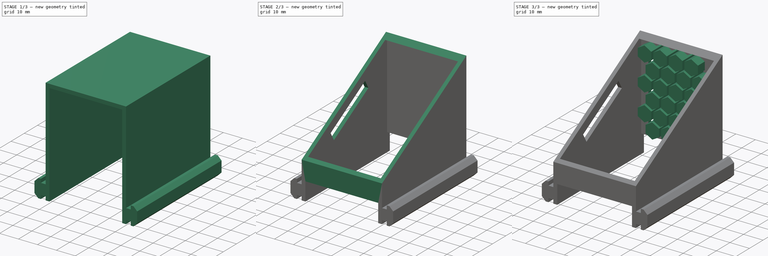
[diagram: build sequence overview — one tinted view per stage of 3, left to right]
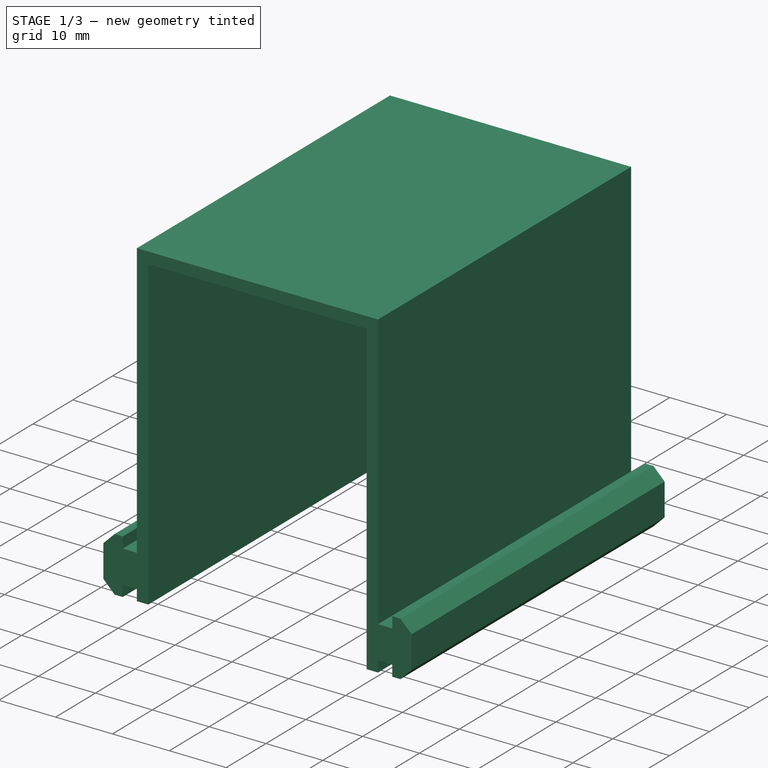
[diagram: stage 1 of 3 — iso view after this stage's code; geometry added in this stage tinted green]
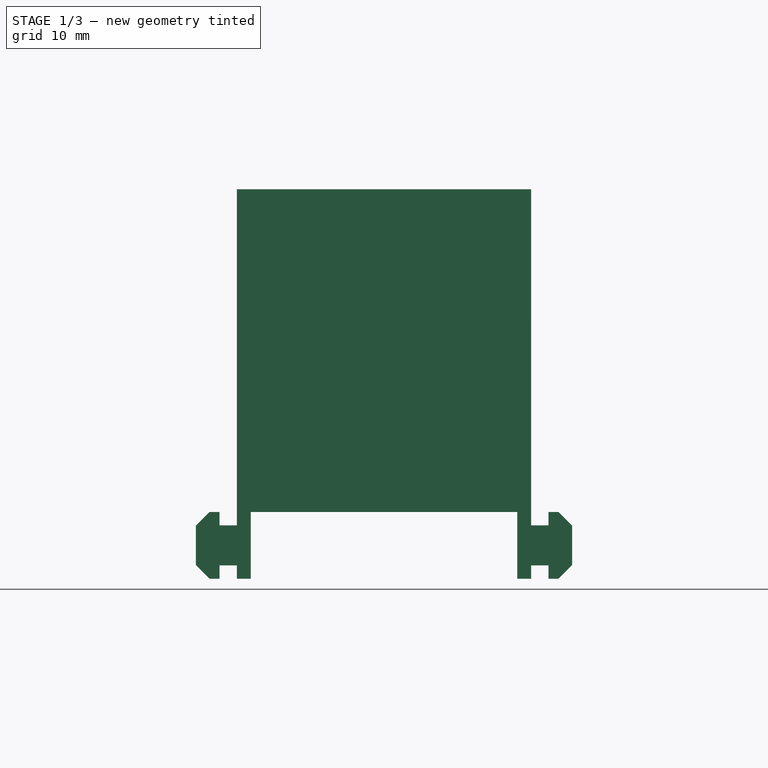
[diagram: stage 1 of 3 — front view after this stage's code; geometry added in this stage tinted green]
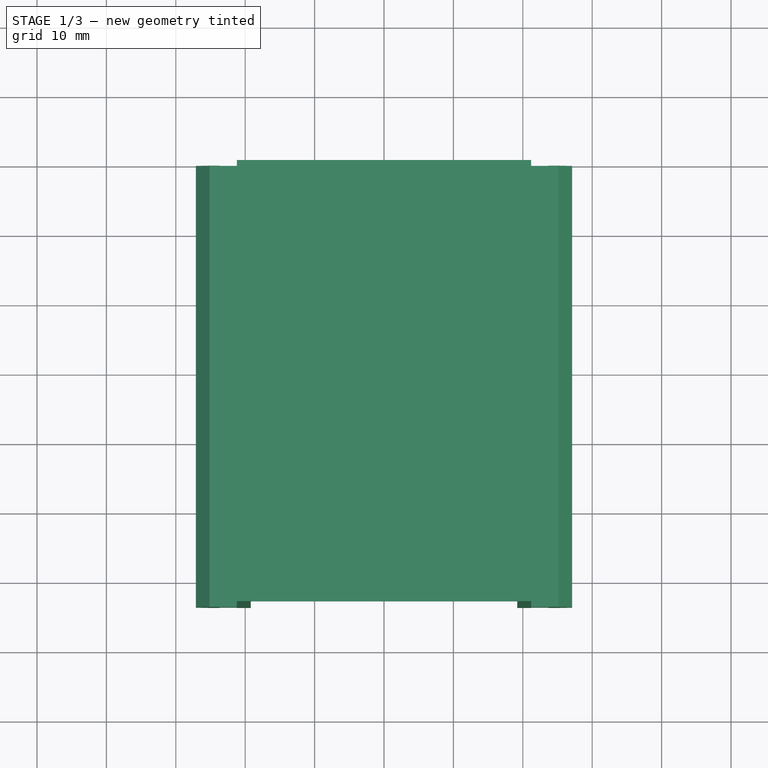
[diagram: stage 1 of 3 — top view after this stage's code; geometry added in this stage tinted green]
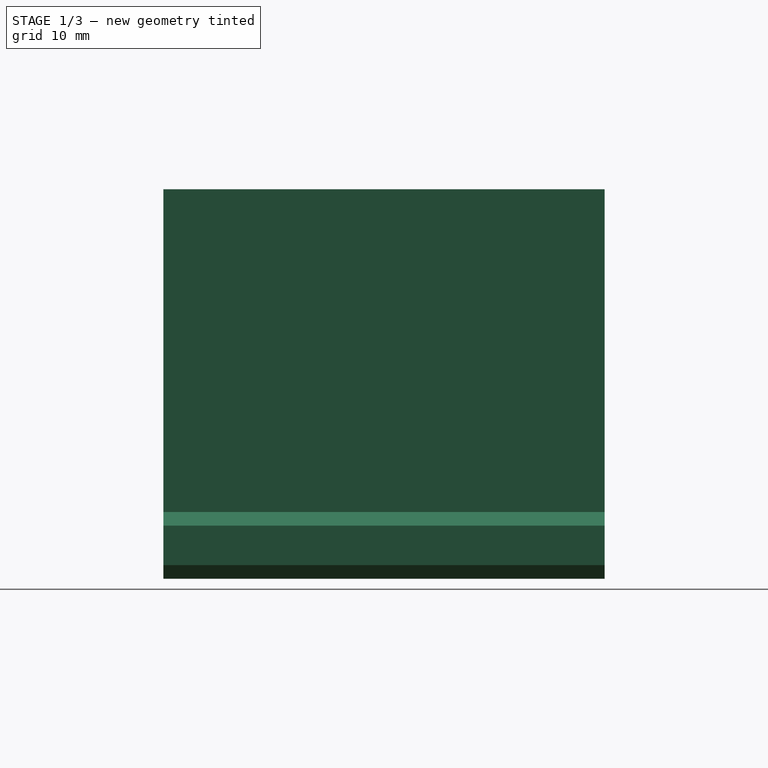
[diagram: stage 1 of 3 — right view after this stage's code; geometry added in this stage tinted green]
FCSTD DOCUMENT  (FreeCAD 1.0R39109 (Git))
Label: 06 Screen Mount Rail  v2 
License: All rights reserved
LicenseURL: https://en.wikipedia.org/wiki/All_rights_reserved
objects: Sketcher::SketchObject×7, PartDesign::Pad×3, PartDesign::Pocket×3, Part::FeaturePython×1, Part::Extrusion×1, PartDesign::Body×1
note: 34 computed .brp shape members not serialized (recipe doc carries the construction recipe); baked Part::Feature solids carry a one-line shape summary decoded from their .brp

FEATURE [Sketcher::SketchObject] Sketch
  ArcFitTolerance = 1e-06
  AttachmentSupport = -> [XZ_Plane]
  FullyConstrained = true
  MakeInternals = false
  MapMode = 5
  Placement = pos=(0,0,0) rot=(1,0,0;1.5708rad)
  sketch-geometry (40):
    g0: LineSegment StartX=-21.2042 StartY=0 StartZ=0 EndX=-21.2042 EndY=1.93 EndZ=0
    g1: LineSegment StartX=-21.2042 StartY=1.93 StartZ=0 EndX=-23.7042 EndY=1.93 EndZ=0
    g2: LineSegment StartX=-23.7042 StartY=1.93 StartZ=0 EndX=-23.7042 EndY=0 EndZ=0
    g3: LineSegment StartX=-23.7042 StartY=0 StartZ=0 EndX=-25.1342 EndY=0 EndZ=0
    g4: LineSegment StartX=-25.1342 StartY=0 StartZ=0 EndX=-27.1 EndY=1.96576 EndZ=0
    g5: LineSegment StartX=-27.1 StartY=1.96576 StartZ=0 EndX=-27.1 EndY=7.65576 EndZ=0
    g6: LineSegment StartX=-27.1 StartY=7.65576 StartZ=0 EndX=-25.1342 EndY=9.62151 EndZ=0
    g7: LineSegment StartX=-25.1342 StartY=9.62151 StartZ=0 EndX=-23.7042 EndY=9.62151 EndZ=0
    g8: LineSegment StartX=-23.7042 StartY=9.62151 StartZ=0 EndX=-23.7042 EndY=7.69151 EndZ=0
    g9: LineSegment StartX=-23.7042 StartY=7.69151 StartZ=0 EndX=-21.2042 EndY=7.69151 EndZ=0
    g10: LineSegment StartX=-21.2042 StartY=7.69151 StartZ=0 EndX=-21.2042 EndY=9.62 EndZ=0
    g11: LineSegment StartX=-21.2042 StartY=9.62 StartZ=0 EndX=-19.2042 EndY=9.62 EndZ=0
    g12: LineSegment StartX=-19.2042 StartY=9.62 StartZ=0 EndX=-19.2042 EndY=0 EndZ=0
    g13: LineSegment StartX=-19.2042 StartY=0 StartZ=0 EndX=-21.2042 EndY=0 EndZ=0
    g14: LineSegment StartX=19.2042 StartY=9.62 StartZ=0 EndX=19.2042 EndY=0 EndZ=0
    g15: LineSegment StartX=19.2042 StartY=0 StartZ=0 EndX=21.2042 EndY=0 EndZ=0
    g16: LineSegment StartX=21.2042 StartY=0 StartZ=0 EndX=21.2042 EndY=1.93 EndZ=0
    g17: LineSegment StartX=21.2042 StartY=1.93 StartZ=0 EndX=23.7042 EndY=1.93 EndZ=0
    g18: LineSegment StartX=23.7042 StartY=1.93 StartZ=0 EndX=23.7042 EndY=0 EndZ=0
    g19: LineSegment StartX=23.7042 StartY=0 StartZ=0 EndX=25.1342 EndY=0 EndZ=0
    g20: LineSegment StartX=25.1342 StartY=0 StartZ=0 EndX=27.1 EndY=1.96576 EndZ=0
    g21: LineSegment StartX=27.1 StartY=1.96576 StartZ=0 EndX=27.1 EndY=7.65576 EndZ=0
    g22: LineSegment StartX=27.1 StartY=7.65576 StartZ=0 EndX=25.1342 EndY=9.62151 EndZ=0
    g23: LineSegment StartX=25.1342 StartY=9.62151 StartZ=0 EndX=23.7042 EndY=9.62151 EndZ=0
    g24: LineSegment StartX=23.7042 StartY=9.62151 StartZ=0 EndX=23.7042 EndY=7.69151 EndZ=0
    g25: LineSegment StartX=23.7042 StartY=7.69151 StartZ=0 EndX=21.2042 EndY=7.69151 EndZ=0
    g26: LineSegment StartX=21.2042 StartY=7.69151 StartZ=0 EndX=21.2042 EndY=9.62 EndZ=0
    g27: LineSegment StartX=21.2042 StartY=9.62 StartZ=0 EndX=19.2042 EndY=9.62 EndZ=0
    g28: LineSegment StartX=19.2042 StartY=56.12 StartZ=0 EndX=19.2042 EndY=9.62 EndZ=0
    g29: LineSegment StartX=19.2042 StartY=9.62 StartZ=0 EndX=21.2042 EndY=9.62 EndZ=0
    g30: LineSegment StartX=21.2042 StartY=9.62 StartZ=0 EndX=21.2042 EndY=56.12 EndZ=0
    g31: LineSegment StartX=21.2042 StartY=56.12 StartZ=0 EndX=19.2042 EndY=56.12 EndZ=0
    g32: LineSegment StartX=-21.2042 StartY=9.62 StartZ=0 EndX=-19.2042 EndY=9.62 EndZ=0
    g33: LineSegment StartX=-19.2042 StartY=9.62 StartZ=0 EndX=-19.2042 EndY=56.12 EndZ=0
    g34: LineSegment StartX=-19.2042 StartY=56.12 StartZ=0 EndX=-21.2042 EndY=56.12 EndZ=0
    g35: LineSegment StartX=-21.2042 StartY=56.12 StartZ=0 EndX=-21.2042 EndY=9.62 EndZ=0
    g36: LineSegment StartX=-19.2042 StartY=56.12 StartZ=0 EndX=19.2042 EndY=56.12 EndZ=0
    g37: LineSegment StartX=19.2042 StartY=56.12 StartZ=0 EndX=19.2042 EndY=54.12 EndZ=0
    g38: LineSegment StartX=19.2042 StartY=54.12 StartZ=0 EndX=-19.2042 EndY=54.12 EndZ=0
    g39: LineSegment StartX=-19.2042 StartY=54.12 StartZ=0 EndX=-19.2042 EndY=56.12 EndZ=0
  constraints (117):
    c: PointOnObject(g0,g-1)
    c: Vertical(g0)
    c: Coincident(g0,g1)
    c: Coincident(g1,g2)
    c: Vertical(g2)
    c: Coincident(g2,g3)
    c: PointOnObject(g3,g-1)
    c: Coincident(g3,g4)
    c: Coincident(g4,g5)
    c: Vertical(g5)
    c: Coincident(g5,g6)
    c: Coincident(g6,g7)
    c: Horizontal(g7)
    c: Coincident(g7,g8)
    c: Vertical(g8)
    c: Coincident(g8,g9)
    c: Horizontal(g9)
    c: Coincident(g9,g10)
    c: Horizontal(g11)
    c: Coincident(g11,g12)
    c: Coincident(g12,g13)
    c: Coincident(g13,g0)
    c: Horizontal(g13)
    c: Vertical(g12)
    c: Vertical(g10)
    c: Horizontal(g1)
    c: Horizontal(g3)
    c: Distance(g13) = 2
    c: Distance(g11) = 2
    c: Distance(g0) = 1.93
    c: Distance(g1) = 2.5
    c: Distance(g9) = 2.5
    c: Distance(g3) = 1.43
    c: Distance(g7) = 1.43
    c: Distance(g4) = 2.78
    c: Distance(g6) = 2.78
    c: Distance(g5) = 5.69
    c: Angle(g-1,g6) = 0.785398
    c: DistanceX(g4,g-1) = 27.1
    c: PointOnObject(g14,g-1)
    c: Vertical(g14)
    c: Coincident(g14,g15)
    c: PointOnObject(g15,g-1)
    c: Coincident(g15,g16)
    c: Coincident(g16,g17)
    c: Horizontal(g17)
    c: Coincident(g17,g18)
    c: PointOnObject(g18,g-1)
    c: Vertical(g18)
    c: Coincident(g18,g19)
    c: PointOnObject(g19,g-1)
    c: Coincident(g19,g20)
    c: Coincident(g20,g21)
    c: Vertical(g21)
    c: Coincident(g21,g22)
    c: Coincident(g22,g23)
    c: Coincident(g23,g24)
    c: Coincident(g24,g25)
    c: Coincident(g25,g26)
    c: Coincident(g26,g27)
    c: Coincident(g27,g14)
    c: Horizontal(g25)
    c: Horizontal(g27)
    c: Horizontal(g23)
    c: Vertical(g16)
    c: Vertical(g26)
    c: Vertical(g24)
    c: Angle(g20,g-1) = 2.35619
    c: Angle(g22,g-1) = 0.785398
    c: Distance(g15) = 2
    c: Distance(g27) = 2
    c: Distance(g25) = 2.5
    c: Distance(g17) = 2.5
    c: Distance(g24) = 1.93
    c: Distance(g18) = 1.93
    c: Distance(g22) = 2.78
    c: Distance(g20) = 2.78
    c: Distance(g19) = 1.43
    c: Distance(g21) = 5.69
    c: Distance(g14) = 9.62
    c: DistanceX(g-1,g20) = 27.1
    c: Coincident(g28,g29)
    c: Coincident(g29,g30)
    c: Coincident(g30,g31)
    c: Coincident(g31,g28)
    c: Vertical(g28)
    c: Vertical(g30)
    c: Horizontal(g29)
    c: Horizontal(g31)
    c: Distance(g28,g30) = 2
    c: Distance(g29,g31) = 46.5
    c: Coincident(g29,g26)
    c: Distance(g8) = 1.93
    c: DistanceY(g12,g12) = 9.62
    c: Coincident(g10,g11)
    c: Coincident(g32,g33)
    c: Coincident(g33,g34)
    c: Coincident(g34,g35)
    c: Coincident(g35,g32)
    c: Horizontal(g32)
    c: Horizontal(g34)
    c: Vertical(g33)
    c: Vertical(g35)
    c: Distance(g33,g35) = 2
    c: Distance(g32,g34) = 46.5
    c: DistanceY(g-1,g34) = 56.12
    c: DistanceX(g10,g32) = 0
    c: Coincident(g33,g36)
    c: Coincident(g36,g28)
    c: Coincident(g36,g37)
    c: PointOnObject(g37,g28)
    c: Coincident(g37,g38)
    c: PointOnObject(g38,g33)
    c: Horizontal(g38)
    c: Coincident(g38,g39)
    c: Coincident(g39,g36)
    c: Distance(g38,g33) = 2
FEATURE [PartDesign::Pad] Pad
  Direction = (0,-1,2e-16)
  Length = 63.57
  Length2 = 10
  Placement = pos=(0,0,0) rot=(1,0,0;1.5708rad)
  Profile = -> Sketch
  ReferenceAxis = -> Sketch [N_Axis]
  Refine = true
  Suppressed = false
  Type = 0
FEATURE [Sketcher::SketchObject] Sketch002
  ArcFitTolerance = 1e-06
  AttachmentSupport = -> [Pad]
  FullyConstrained = true
  MakeInternals = false
  MapMode = 5
  Placement = pos=(0,1e-16,0) rot=(-1,0,0;1.5708rad)
  sketch-geometry (4):
    g0: LineSegment StartX=-19.205 StartY=-9.62 StartZ=0 EndX=-19.205 EndY=-56.12 EndZ=0
    g1: LineSegment StartX=-19.205 StartY=-56.12 StartZ=0 EndX=19.205 EndY=-56.12 EndZ=0
    g2: LineSegment StartX=19.205 StartY=-56.12 StartZ=0 EndX=19.205 EndY=-9.62 EndZ=0
    g3: LineSegment StartX=19.205 StartY=-9.62 StartZ=0 EndX=-19.205 EndY=-9.62 EndZ=0
  constraints (12):
    c: Coincident(g0,g1)
    c: Coincident(g1,g2)
    c: Coincident(g2,g3)
    c: Coincident(g3,g0)
    c: Vertical(g0)
    c: Vertical(g2)
    c: Horizontal(g1)
    c: Horizontal(g3)
    c: Distance(g0,g2) = 38.41
    c: Distance(g1,g3) = 46.5
    c: DistanceY(g0,g-1) = 9.62
    c: DistanceX(g0,g-1) = 19.205
FEATURE [PartDesign::Pad] Pad001
  BaseFeature = -> Pad
  Direction = (0,1,2e-16)
  Length = 2
  Length2 = 10
  Placement = pos=(0,0,0) rot=(1,0,0;1.5708rad)
  Profile = -> Sketch002
  ReferenceAxis = -> Sketch002 [N_Axis]
  Refine = true
  Reversed = true
  Suppressed = false
  Type = 0
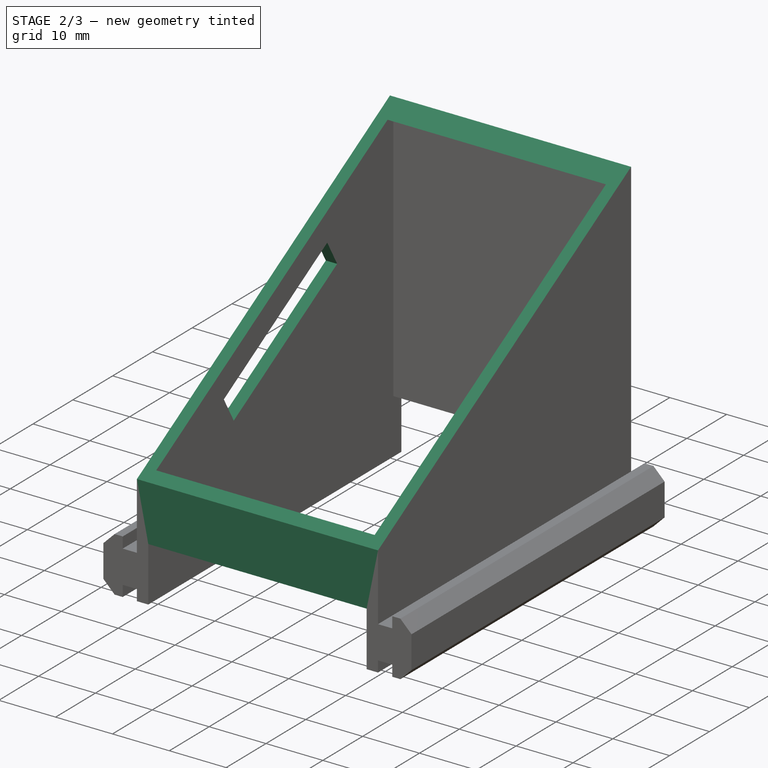
[diagram: stage 2 of 3 — iso view after this stage's code; geometry added in this stage tinted green]
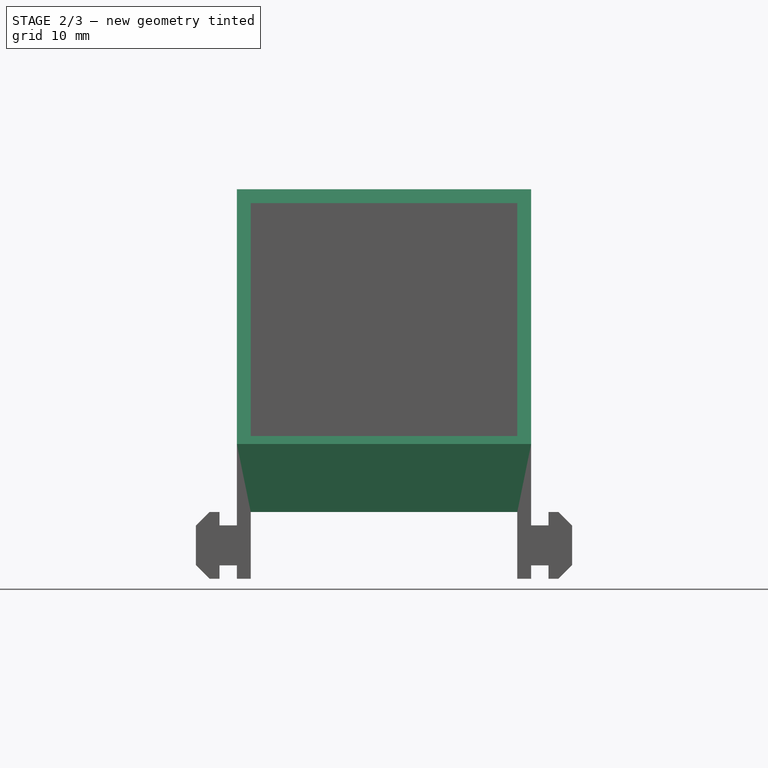
[diagram: stage 2 of 3 — front view after this stage's code; geometry added in this stage tinted green]
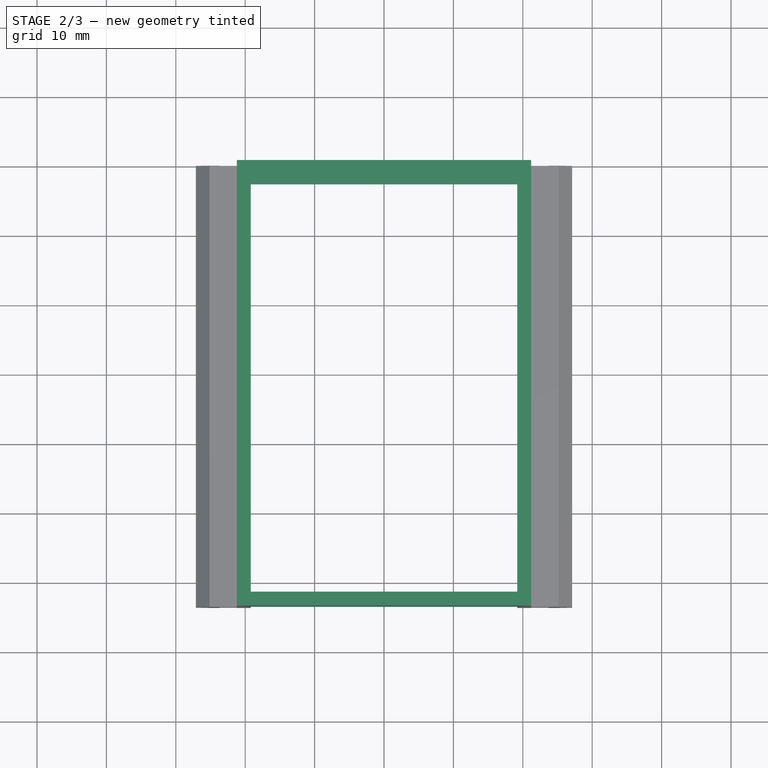
[diagram: stage 2 of 3 — top view after this stage's code; geometry added in this stage tinted green]
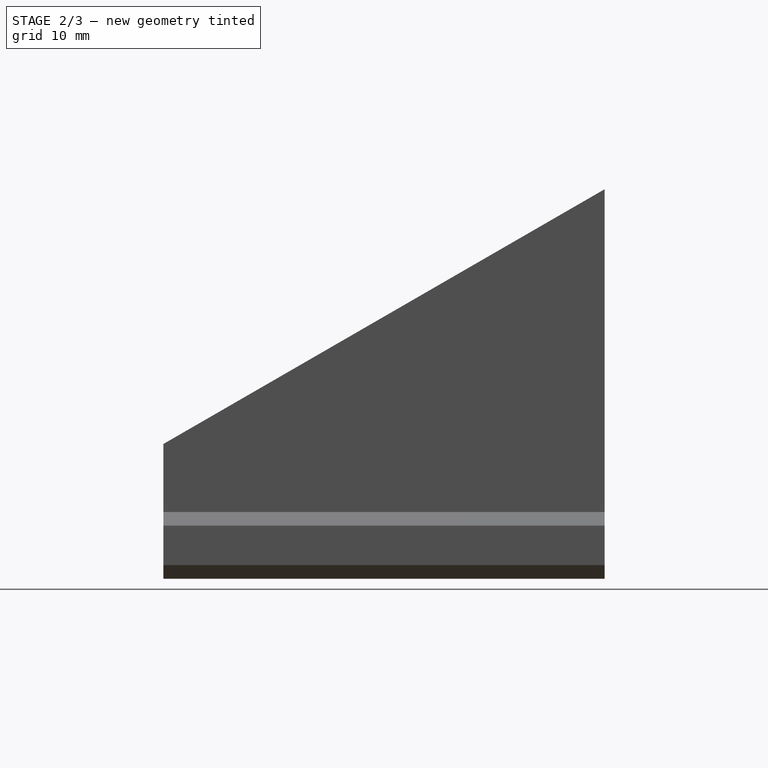
[diagram: stage 2 of 3 — right view after this stage's code; geometry added in this stage tinted green]
FEATURE [Sketcher::SketchObject] Sketch003
  ArcFitTolerance = 1e-06
  AttachmentSupport = -> [Pad001]
  FullyConstrained = true
  MakeInternals = false
  MapMode = 5
  Placement = pos=(0,-63.57,3.05e-14) rot=(1,0,0;1.5708rad)
  sketch-geometry (4):
    g0: LineSegment StartX=-19.205 StartY=21.62 StartZ=0 EndX=-19.205 EndY=9.62 EndZ=0
    g1: LineSegment StartX=-19.205 StartY=9.62 StartZ=0 EndX=19.205 EndY=9.62 EndZ=0
    g2: LineSegment StartX=19.205 StartY=9.62 StartZ=0 EndX=19.205 EndY=21.62 EndZ=0
    g3: LineSegment StartX=19.205 StartY=21.62 StartZ=0 EndX=-19.205 EndY=21.62 EndZ=0
  constraints (12):
    c: Coincident(g0,g1)
    c: Coincident(g1,g2)
    c: Coincident(g2,g3)
    c: Coincident(g3,g0)
    c: Vertical(g0)
    c: Vertical(g2)
    c: Horizontal(g1)
    c: Horizontal(g3)
    c: Distance(g0,g2) = 38.41
    c: Distance(g1,g3) = 12
    c: DistanceY(g-1,g0) = 9.62
    c: DistanceX(g0,g-1) = 19.205
FEATURE [PartDesign::Pad] Pad002
  BaseFeature = -> Pad001
  Direction = (0,-1,2e-16)
  Length = 2
  Length2 = 10
  Placement = pos=(0,0,0) rot=(1,0,0;1.5708rad)
  Profile = -> Sketch003
  ReferenceAxis = -> Sketch003 [N_Axis]
  Refine = true
  Reversed = true
  Suppressed = false
  Type = 0
FEATURE [Sketcher::SketchObject] Sketch004
  ArcFitTolerance = 1e-06
  AttachmentSupport = -> [Pad002]
  FullyConstrained = true
  MakeInternals = false
  MapMode = 5
  Placement = pos=(-21.2042,0,0) rot=(0.707107,0,-0.707107;3.14159rad)
  sketch-geometry (3):
    g0: LineSegment StartX=-19.12 StartY=64.0859 StartZ=0 EndX=-56.12 EndY=0 EndZ=0
    g1: LineSegment StartX=-56.12 StartY=0 StartZ=0 EndX=-56.12 EndY=64 EndZ=0
    g2: LineSegment StartX=-56.12 StartY=64 StartZ=0 EndX=-19.12 EndY=64.0859 EndZ=0
  constraints (9):
    c: Distance(g0) = 74
    c: Angle(g-1,g0) = -2.0944
    c: Distance(g1) = 64
    c: Vertical(g1)
    c: Coincident(g1,g0)
    c: DistanceY(g-1,g0) = 0
    c: Coincident(g2,g1)
    c: Coincident(g2,g0)
    c: DistanceX(g0,g-1) = 56.12
FEATURE [PartDesign::Pocket] Pocket
  BaseFeature = -> Pad002
  Direction = (1,0,2e-16)
  Length = 5
  Length2 = 5
  Placement = pos=(0,0,0) rot=(1,0,0;1.5708rad)
  Profile = -> Sketch004
  ReferenceAxis = -> Sketch004 [N_Axis]
  Refine = true
  Suppressed = false
  Type = 1
FEATURE [Sketcher::SketchObject] Sketch005
  ArcFitTolerance = 1e-06
  AttachmentSupport = -> [Pocket]
  FullyConstrained = true
  MakeInternals = false
  MapMode = 5
  Placement = pos=(-21.2042,0,0) rot=(0.707107,0,-0.707107;3.14159rad)
  sketch-geometry (4):
    g0: LineSegment StartX=-25.37 StartY=44.6008 StartZ=0 EndX=-40.37 EndY=18.62 EndZ=0
    g1: LineSegment StartX=-40.37 StartY=18.62 StartZ=0 EndX=-36.0399 EndY=16.12 EndZ=0
    g2: LineSegment StartX=-36.0399 StartY=16.12 StartZ=0 EndX=-21.0399 EndY=42.1008 EndZ=0
    g3: LineSegment StartX=-21.0399 StartY=42.1008 StartZ=0 EndX=-25.37 EndY=44.6008 EndZ=0
  constraints (12):
    c: Distance(g0) = 30
    c: Angle(g-1,g0) = -2.0944
    c: Distance(g1) = 5
    c: Angle(g-1,g1) = -0.523599
    c: Coincident(g1,g0)
    c: Distance(g2) = 30
    c: Angle(g-1,g2) = 1.0472
    c: Coincident(g2,g1)
    c: Coincident(g3,g2)
    c: Coincident(g3,g0)
    c: DistanceX(g0,g-1) = 40.37
    c: DistanceY(g-1,g0) = 18.62
FEATURE [PartDesign::Pocket] Pocket001
  BaseFeature = -> Pocket
  Direction = (1,0,2e-16)
  Length = 5
  Length2 = 5
  Placement = pos=(0,0,0) rot=(1,0,0;1.5708rad)
  Profile = -> Sketch005
  ReferenceAxis = -> Sketch005 [N_Axis]
  Refine = true
  Suppressed = false
  Type = 0
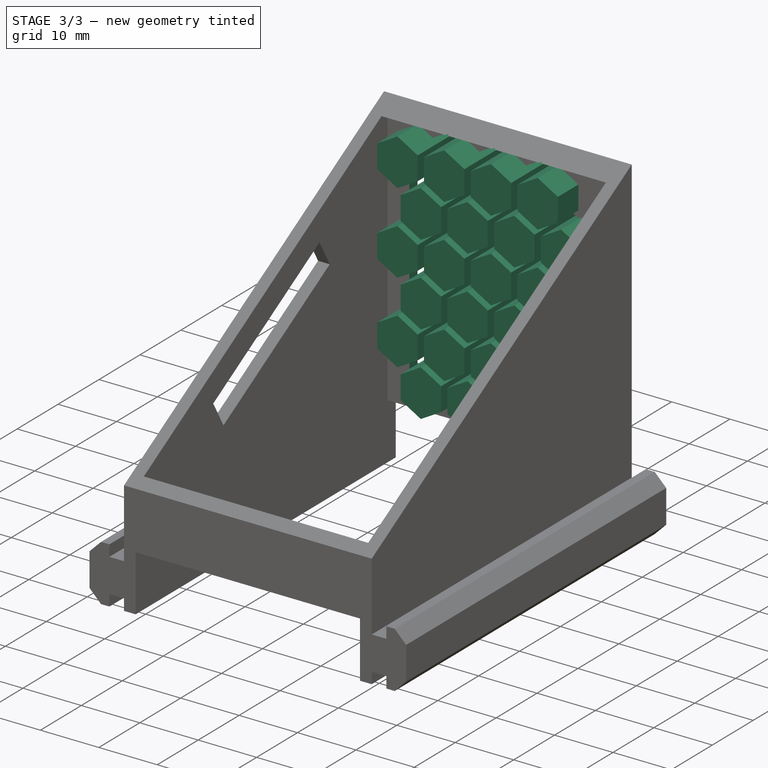
[diagram: stage 3 of 3 — iso view after this stage's code; geometry added in this stage tinted green]
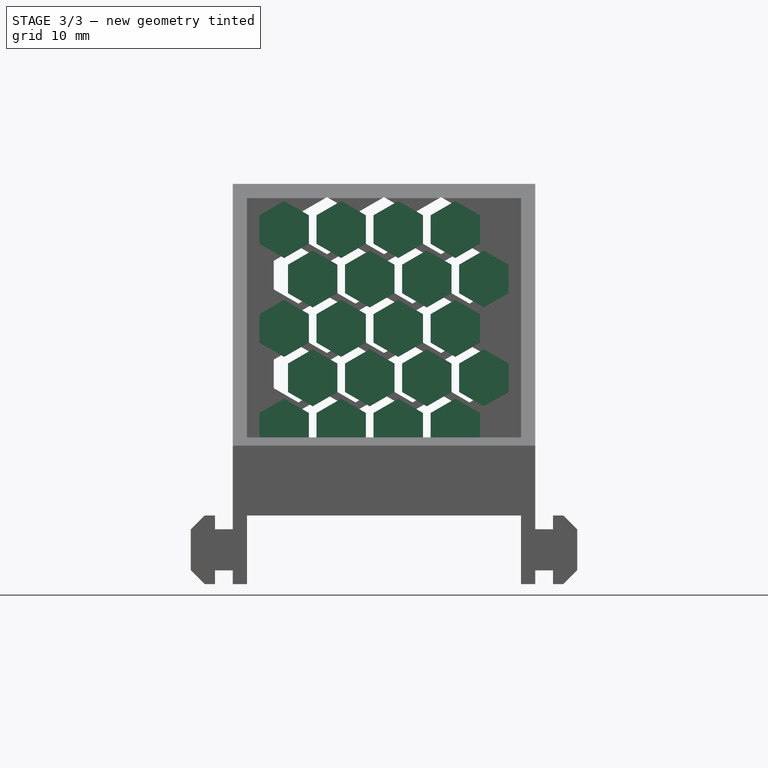
[diagram: stage 3 of 3 — front view after this stage's code; geometry added in this stage tinted green]
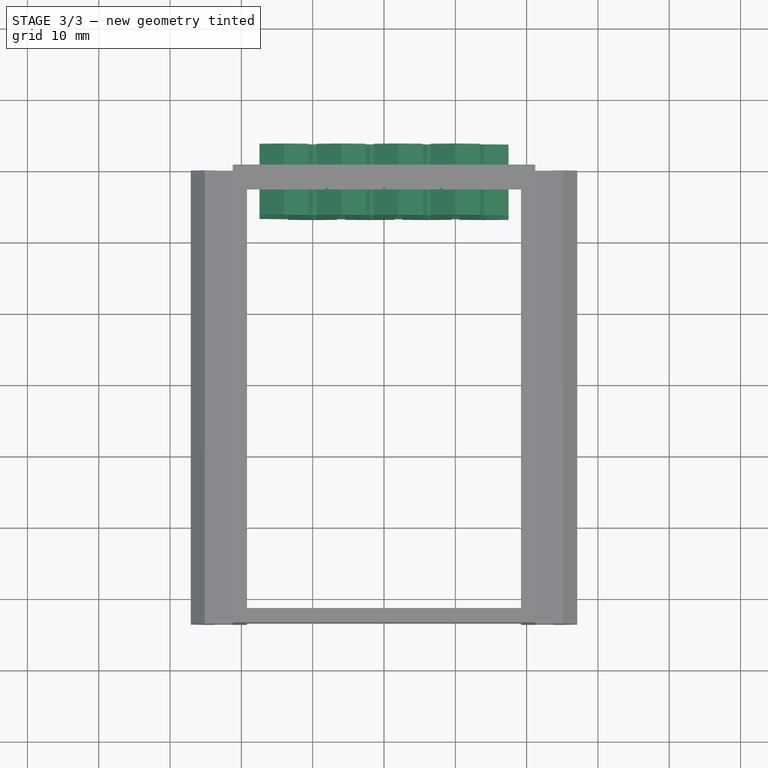
[diagram: stage 3 of 3 — top view after this stage's code; geometry added in this stage tinted green]
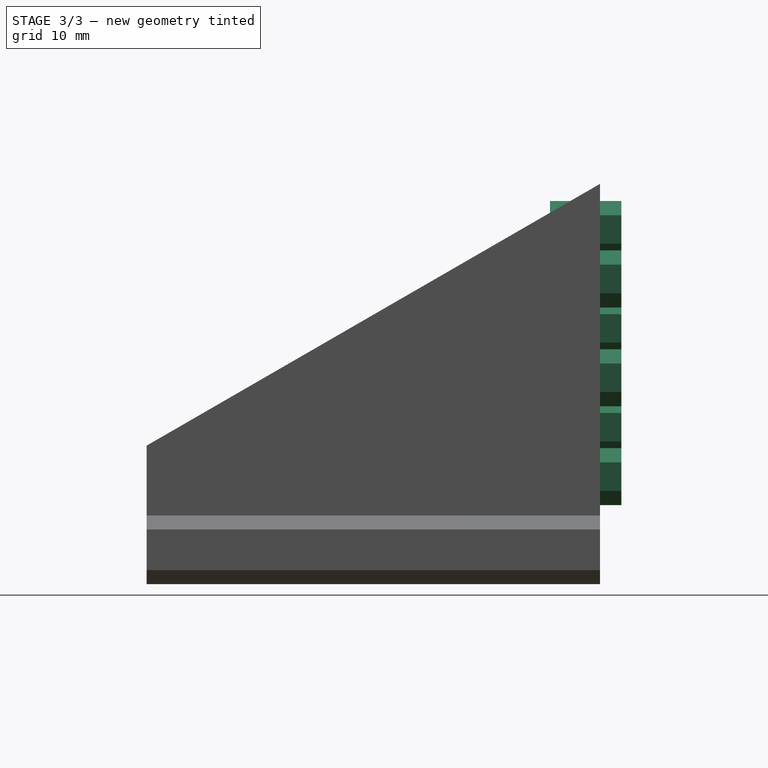
[diagram: stage 3 of 3 — right view after this stage's code; geometry added in this stage tinted green]
FEATURE [Sketcher::SketchObject] Sketch006  label="Hexagons"
  ArcFitTolerance = 1e-06
  FullyConstrained = true
  MakeInternals = false
  Placement = pos=(0,0,0) rot=(1,0,0;1.5708rad)
  sketch-geometry (17):
    g0: LineSegment StartX=0 StartY=4 StartZ=0 EndX=-3.4641 EndY=2 EndZ=0
    g1: LineSegment StartX=-3.4641 StartY=2 StartZ=0 EndX=-3.4641 EndY=-2 EndZ=0
    g2: LineSegment StartX=-3.4641 StartY=-2 StartZ=0 EndX=-1.24e-14 EndY=-4 EndZ=0
    g3: LineSegment StartX=-1.24e-14 StartY=-4 StartZ=0 EndX=3.4641 EndY=-2 EndZ=0
    g4: LineSegment StartX=3.4641 StartY=-2 StartZ=0 EndX=3.4641 EndY=2 EndZ=0
    g5: LineSegment StartX=3.4641 StartY=2 StartZ=0 EndX=0 EndY=4 EndZ=0
    g6: Circle [constr] CenterX=0 CenterY=0 CenterZ=0 NormalX=0 NormalY=0 NormalZ=1 AngleXU=0 Radius=4
    g7: LineSegment StartX=7.4642 StartY=-4.92838 StartZ=0 EndX=4.0001 EndY=-2.92838 EndZ=0
    g8: LineSegment StartX=4.0001 StartY=-2.92838 StartZ=0 EndX=0.536 EndY=-4.92838 EndZ=0
    g9: LineSegment StartX=0.536 StartY=-4.92838 StartZ=0 EndX=0.536 EndY=-8.92838 EndZ=0
    g10: LineSegment StartX=0.536 StartY=-8.92838 StartZ=0 EndX=4.0001 EndY=-10.9284 EndZ=0
    g11: LineSegment StartX=4.0001 StartY=-10.9284 StartZ=0 EndX=7.4642 EndY=-8.92838 EndZ=0
    g12: LineSegment StartX=7.4642 StartY=-8.92838 StartZ=0 EndX=7.4642 EndY=-4.92838 EndZ=0
    g13: Circle [constr] CenterX=4.0001 CenterY=-6.92838 CenterZ=0 NormalX=0 NormalY=0 NormalZ=1 AngleXU=0 Radius=4
    g14: LineSegment [constr] StartX=3.4641 StartY=-2 StartZ=0 EndX=4.0001 EndY=-2.92838 EndZ=0
    g15: LineSegment [constr] StartX=4.0001 StartY=-2.92838 StartZ=0 EndX=4.5361 EndY=-2 EndZ=0
    g16: LineSegment [constr] StartX=4.5361 StartY=-2 StartZ=0 EndX=3.4641 EndY=-2 EndZ=0
  constraints (40):
    c: Coincident(g0,g1)
    c: Coincident(g1,g2)
    c: Coincident(g2,g3)
    c: Coincident(g3,g4)
    c: Coincident(g4,g5)
    c: Coincident(g5,g0)
    c: Equal(g0, g1-g5) x5
    c: PointOnObject(g0,g6)
    c: PointOnObject(g1,g6)
    c: PointOnObject(g2,g6)
    c: PointOnObject(g3,g6)
    c: PointOnObject(g4,g6)
    c: PointOnObject(g5,g6)
    c: Radius(g6) = 4
    c: PointOnObject(g5,g-2)
    c: Coincident(g6,g-1)
    c: Coincident(g7,g8)
    c: Coincident(g8,g9)
    c: Coincident(g9,g10)
    c: Coincident(g10,g11)
    c: Coincident(g11,g12)
    c: Coincident(g12,g7)
    c: Equal(g7, g8-g12) x5
    c: PointOnObject(g7,g13)
    c: PointOnObject(g8,g13)
    c: PointOnObject(g9,g13)
    c: PointOnObject(g10,g13)
    c: PointOnObject(g11,g13)
    c: PointOnObject(g12,g13)
    c: Radius(g13) = 4
    c: Coincident(g3,g14)
    c: Coincident(g14,g7)
    c: Coincident(g14,g15)
    c: Coincident(g15,g16)
    c: Coincident(g16,g14)
    c: Equal(g16,g14)
    c: Equal(g14,g15)
    c: Distance(g16) = 1.072
    c: Horizontal(g16)
    c: Vertical(g9)
FEATURE [Part::FeaturePython] Array  # Draft array (typed FeaturePython)
  AlwaysSyncPlacement = false
  Angle = 360
  ArrayType = 0
  Axis = (0,0,1)
  Base = -> Sketch006
  Center = (0,0,0)
  Count = 12
  ExpandArray = false
  Fuse = false
  IntervalAxis = (0,0,0)
  IntervalX = (8,0,0)
  IntervalY = (0,13.86,0)
  IntervalZ = (0,0,13.86)
  NumberCircles = 3
  NumberPolar = 5
  NumberX = 4
  NumberY = 1
  NumberZ = 3
  Placement = pos=(-14,15,22) rot=(0,0,1;0rad)
  PlacementList = 12 placements: [(0,0,0),(0,0,13.86),(0,0,27.72),(8,0,0),(8,0,13.86),(8,0,27.72),(16,0,0),(16,0,13.86),(16,0,27.72),(24,0,0),(24,0,13.86),(24,0,27.72)]
  RadialDistance = 50
  ScaleList = (12) [(1,1,1),(1,1,1),(1,1,1),(1,1,1),(1,1,1),(1,1,1),(1,1,1),(1,1,1),(1,1,1),(1,1,1),(1,1,1),(1,1,1)]
  Symmetry = 1
  TangentialDistance = 25
FEATURE [Part::Extrusion] Extrude
  Base = -> Array
  Dir = (-2.49e-14,1,-2.48e-14)
  DirMode = 2
  FaceMakerClass = Part::FaceMakerBullseye
  FaceMakerMode = 3
  LengthFwd = 10
  LengthRev = 0
  Placement = pos=(0,-22,0) rot=(0,0,1;0rad)
  Solid = true
  Symmetric = false
FEATURE [Sketcher::SketchObject] Sketch007
  ArcFitTolerance = 1e-06
  AttachmentSupport = -> [Pocket001]
  FullyConstrained = true
  MakeInternals = false
  MapMode = 5
  Placement = pos=(0,-1e-15,0) rot=(-1,0,0;1.5708rad)
  sketch-geometry (204):
    g0: LineSegment StartX=-0.535898 StartY=-13.62 StartZ=0 EndX=-4 EndY=-11.62 EndZ=0
    g1: LineSegment StartX=-4 StartY=-11.62 StartZ=0 EndX=-7.4641 EndY=-13.62 EndZ=0
    g2: LineSegment StartX=-7.4641 StartY=-13.62 StartZ=0 EndX=-7.4641 EndY=-17.62 EndZ=0
    g3: LineSegment StartX=-7.4641 StartY=-17.62 StartZ=0 EndX=-4 EndY=-19.62 EndZ=0
    g4: LineSegment StartX=-4 StartY=-19.62 StartZ=0 EndX=-0.535898 EndY=-17.62 EndZ=0
    g5: LineSegment StartX=-0.535898 StartY=-17.62 StartZ=0 EndX=-0.535898 EndY=-13.62 EndZ=0
    g6: Circle [constr] CenterX=-4 CenterY=-15.62 CenterZ=0 NormalX=0 NormalY=0 NormalZ=1 AngleXU=0 Radius=4
    g7: LineSegment StartX=3.4642 StartY=-20.5484 StartZ=0 EndX=0.000101615 EndY=-18.5484 EndZ=0
    g8: LineSegment StartX=0.000101615 StartY=-18.5484 StartZ=0 EndX=-3.464 EndY=-20.5484 EndZ=0
    g9: LineSegment StartX=-3.464 StartY=-20.5484 StartZ=0 EndX=-3.464 EndY=-24.5484 EndZ=0
    g10: LineSegment StartX=-3.464 StartY=-24.5484 StartZ=0 EndX=0.000101615 EndY=-26.5484 EndZ=0
    g11: LineSegment StartX=0.000101615 StartY=-26.5484 StartZ=0 EndX=3.4642 EndY=-24.5484 EndZ=0
    g12: LineSegment StartX=3.4642 StartY=-24.5484 StartZ=0 EndX=3.4642 EndY=-20.5484 EndZ=0
    g13: Circle [constr] CenterX=0.000101615 CenterY=-22.5484 CenterZ=0 NormalX=0 NormalY=0 NormalZ=1 AngleXU=0 Radius=4
    g14: LineSegment [constr] StartX=-0.535898 StartY=-17.62 StartZ=0 EndX=0.000101615 EndY=-18.5484 EndZ=0
    g15: LineSegment [constr] StartX=0.000101615 StartY=-18.5484 StartZ=0 EndX=0.536102 EndY=-17.62 EndZ=0
    g16: LineSegment [constr] StartX=0.536102 StartY=-17.62 StartZ=0 EndX=-0.535898 EndY=-17.62 EndZ=0
    g17: LineSegment StartX=7.4643 StartY=-13.62 StartZ=0 EndX=4.0002 EndY=-11.62 EndZ=0
    g18: LineSegment StartX=4.0002 StartY=-11.62 StartZ=0 EndX=0.536102 EndY=-13.62 EndZ=0
    g19: LineSegment StartX=0.536102 StartY=-13.62 StartZ=0 EndX=0.536102 EndY=-17.62 EndZ=0
    g20: LineSegment StartX=0.536102 StartY=-17.62 StartZ=0 EndX=4.0002 EndY=-19.62 EndZ=0
    g21: LineSegment StartX=4.0002 StartY=-19.62 StartZ=0 EndX=7.4643 EndY=-17.62 EndZ=0
    g22: LineSegment StartX=7.4643 StartY=-17.62 StartZ=0 EndX=7.4643 EndY=-13.62 EndZ=0
    g23: Circle [constr] CenterX=4.0002 CenterY=-15.62 CenterZ=0 NormalX=0 NormalY=0 NormalZ=1 AngleXU=0 Radius=4
    g24: LineSegment StartX=15.4645 StartY=-13.62 StartZ=0 EndX=12.0004 EndY=-11.62 EndZ=0
    g25: LineSegment StartX=12.0004 StartY=-11.62 StartZ=0 EndX=8.5363 EndY=-13.62 EndZ=0
    g26: LineSegment StartX=8.5363 StartY=-13.62 StartZ=0 EndX=8.5363 EndY=-17.62 EndZ=0
    g27: LineSegment StartX=8.5363 StartY=-17.62 StartZ=0 EndX=12.0004 EndY=-19.62 EndZ=0
    g28: LineSegment StartX=12.0004 StartY=-19.62 StartZ=0 EndX=15.4645 EndY=-17.62 EndZ=0
    g29: LineSegment StartX=15.4645 StartY=-17.62 StartZ=0 EndX=15.4645 EndY=-13.62 EndZ=0
    g30: Circle [constr] CenterX=12.0004 CenterY=-15.62 CenterZ=0 NormalX=0 NormalY=0 NormalZ=1 AngleXU=0 Radius=4
    g31: LineSegment [constr] StartX=7.4643 StartY=-17.62 StartZ=0 EndX=8.5363 EndY=-17.62 EndZ=0
    g32: LineSegment [constr] StartX=8.5363 StartY=-17.62 StartZ=0 EndX=7.9501 EndY=-18.5756 EndZ=0
    g33: LineSegment [constr] StartX=7.9501 StartY=-18.5756 StartZ=0 EndX=7.4643 EndY=-17.62 EndZ=0
    g34: LineSegment StartX=-8.5361 StartY=-13.62 StartZ=0 EndX=-12.0002 EndY=-11.62 EndZ=0
    g35: LineSegment StartX=-12.0002 StartY=-11.62 StartZ=0 EndX=-15.4643 EndY=-13.62 EndZ=0
    g36: LineSegment StartX=-15.4643 StartY=-13.62 StartZ=0 EndX=-15.4643 EndY=-17.62 EndZ=0
    g37: LineSegment StartX=-15.4643 StartY=-17.62 StartZ=0 EndX=-12.0002 EndY=-19.62 EndZ=0
    g38: LineSegment StartX=-12.0002 StartY=-19.62 StartZ=0 EndX=-8.5361 EndY=-17.62 EndZ=0
    g39: LineSegment StartX=-8.5361 StartY=-17.62 StartZ=0 EndX=-8.5361 EndY=-13.62 EndZ=0
    g40: Circle [constr] CenterX=-12.0002 CenterY=-15.62 CenterZ=0 NormalX=0 NormalY=0 NormalZ=1 AngleXU=0 Radius=4
    g41: LineSegment [constr] StartX=-8.5361 StartY=-17.62 StartZ=0 EndX=-7.4641 EndY=-17.62 EndZ=0
    g42: LineSegment [constr] StartX=-7.4641 StartY=-17.62 StartZ=0 EndX=-8.0001 EndY=-18.5484 EndZ=0
    g43: LineSegment [constr] StartX=-8.0001 StartY=-18.5484 StartZ=0 EndX=-8.5361 EndY=-17.62 EndZ=0
    g44: LineSegment StartX=-4.536 StartY=-20.5484 StartZ=0 EndX=-8.0001 EndY=-18.5484 EndZ=0
    g45: LineSegment StartX=-8.0001 StartY=-18.5484 StartZ=0 EndX=-11.4642 EndY=-20.5484 EndZ=0
    g46: LineSegment StartX=-11.4642 StartY=-20.5484 StartZ=0 EndX=-11.4642 EndY=-24.5484 EndZ=0
    g47: LineSegment StartX=-11.4642 StartY=-24.5484 StartZ=0 EndX=-8.0001 EndY=-26.5484 EndZ=0
    g48: LineSegment StartX=-8.0001 StartY=-26.5484 StartZ=0 EndX=-4.536 EndY=-24.5484 EndZ=0
    g49: LineSegment StartX=-4.536 StartY=-24.5484 StartZ=0 EndX=-4.536 EndY=-20.5484 EndZ=0
    g50: Circle [constr] CenterX=-8.0001 CenterY=-22.5484 CenterZ=0 NormalX=0 NormalY=0 NormalZ=1 AngleXU=0 Radius=4
    g51: LineSegment StartX=11.4644 StartY=-20.5484 StartZ=0 EndX=8.0003 EndY=-18.5484 EndZ=0
    g52: LineSegment StartX=8.0003 StartY=-18.5484 StartZ=0 EndX=4.5362 EndY=-20.5484 EndZ=0
    g53: LineSegment StartX=4.5362 StartY=-20.5484 StartZ=0 EndX=4.5362 EndY=-24.5484 EndZ=0
    g54: LineSegment StartX=4.5362 StartY=-24.5484 StartZ=0 EndX=8.0003 EndY=-26.5484 EndZ=0
    g55: LineSegment StartX=8.0003 StartY=-26.5484 StartZ=0 EndX=11.4644 EndY=-24.5484 EndZ=0
    g56: LineSegment StartX=11.4644 StartY=-24.5484 StartZ=0 EndX=11.4644 EndY=-20.5484 EndZ=0
    g57: Circle [constr] CenterX=8.0003 CenterY=-22.5484 CenterZ=0 NormalX=0 NormalY=0 NormalZ=1 AngleXU=0 Radius=4
    g58: LineSegment [constr] StartX=4.0002 StartY=-19.62 StartZ=0 EndX=3.4642 EndY=-20.5484 EndZ=0
    g59: LineSegment [constr] StartX=3.4642 StartY=-20.5484 StartZ=0 EndX=4.5362 EndY=-20.5484 EndZ=0
    g60: LineSegment [constr] StartX=4.5362 StartY=-20.5484 StartZ=0 EndX=4.0002 EndY=-19.62 EndZ=0
    g61: LineSegment [constr] StartX=-4 StartY=-19.62 StartZ=0 EndX=-4.536 EndY=-20.5484 EndZ=0
    g62: LineSegment [constr] StartX=-4.536 StartY=-20.5484 StartZ=0 EndX=-3.464 EndY=-20.5484 EndZ=0
    g63: LineSegment [constr] StartX=-3.464 StartY=-20.5484 StartZ=0 EndX=-4 EndY=-19.62 EndZ=0
    g64: LineSegment [constr] StartX=-4.536 StartY=-24.5484 StartZ=0 EndX=-3.464 EndY=-24.5484 EndZ=0
    g65: LineSegment [constr] StartX=-3.464 StartY=-24.5484 StartZ=0 EndX=-4 EndY=-25.4768 EndZ=0
    g66: LineSegment [constr] StartX=-4 StartY=-25.4768 StartZ=0 EndX=-4.536 EndY=-24.5484 EndZ=0
    g67: LineSegment [constr] StartX=3.4642 StartY=-24.5484 StartZ=0 EndX=4.5362 EndY=-24.5484 EndZ=0
    g68: LineSegment [constr] StartX=4.5362 StartY=-24.5484 StartZ=0 EndX=4.0002 EndY=-25.4768 EndZ=0
    g69: LineSegment [constr] StartX=4.0002 StartY=-25.4768 StartZ=0 EndX=3.4642 EndY=-24.5484 EndZ=0
    g70: LineSegment StartX=-8.5361 StartY=-27.4768 StartZ=0 EndX=-12.0002 EndY=-25.4768 EndZ=0
    g71: LineSegment StartX=-12.0002 StartY=-25.4768 StartZ=0 EndX=-15.4643 EndY=-27.4768 EndZ=0
    g72: LineSegment StartX=-15.4643 StartY=-27.4768 StartZ=0 EndX=-15.4643 EndY=-31.4768 EndZ=0
    g73: LineSegment StartX=-15.4643 StartY=-31.4768 StartZ=0 EndX=-12.0002 EndY=-33.4768 EndZ=0
    g74: LineSegment StartX=-12.0002 StartY=-33.4768 StartZ=0 EndX=-8.5361 EndY=-31.4768 EndZ=0
    g75: LineSegment StartX=-8.5361 StartY=-31.4768 StartZ=0 EndX=-8.5361 EndY=-27.4768 EndZ=0
    g76: Circle [constr] CenterX=-12.0002 CenterY=-29.4768 CenterZ=0 NormalX=0 NormalY=0 NormalZ=1 AngleXU=0 Radius=4
    g77: LineSegment StartX=-0.535898 StartY=-27.4768 StartZ=0 EndX=-4 EndY=-25.4768 EndZ=0
    g78: LineSegment StartX=-4 StartY=-25.4768 StartZ=0 EndX=-7.4641 EndY=-27.4768 EndZ=0
    g79: LineSegment StartX=-7.4641 StartY=-27.4768 StartZ=0 EndX=-7.4641 EndY=-31.4768 EndZ=0
    g80: LineSegment StartX=-7.4641 StartY=-31.4768 StartZ=0 EndX=-4 EndY=-33.4768 EndZ=0
    g81: LineSegment StartX=-4 StartY=-33.4768 StartZ=0 EndX=-0.535898 EndY=-31.4768 EndZ=0
    g82: LineSegment StartX=-0.535898 StartY=-31.4768 StartZ=0 EndX=-0.535898 EndY=-27.4768 EndZ=0
    g83: Circle [constr] CenterX=-4 CenterY=-29.4768 CenterZ=0 NormalX=0 NormalY=0 NormalZ=1 AngleXU=0 Radius=4
    g84: LineSegment StartX=7.4643 StartY=-27.4768 StartZ=0 EndX=4.0002 EndY=-25.4768 EndZ=0
    g85: LineSegment StartX=4.0002 StartY=-25.4768 StartZ=0 EndX=0.536102 EndY=-27.4768 EndZ=0
    g86: LineSegment StartX=0.536102 StartY=-27.4768 StartZ=0 EndX=0.536102 EndY=-31.4768 EndZ=0
    g87: LineSegment StartX=0.536102 StartY=-31.4768 StartZ=0 EndX=4.0002 EndY=-33.4768 EndZ=0
    g88: LineSegment StartX=4.0002 StartY=-33.4768 StartZ=0 EndX=7.4643 EndY=-31.4768 EndZ=0
    g89: LineSegment StartX=7.4643 StartY=-31.4768 StartZ=0 EndX=7.4643 EndY=-27.4768 EndZ=0
    g90: Circle [constr] CenterX=4.0002 CenterY=-29.4768 CenterZ=0 NormalX=0 NormalY=0 NormalZ=1 AngleXU=0 Radius=4
    g91: LineSegment StartX=15.4645 StartY=-27.4768 StartZ=0 EndX=12.0004 EndY=-25.4768 EndZ=0
    g92: LineSegment StartX=12.0004 StartY=-25.4768 StartZ=0 EndX=8.5363 EndY=-27.4768 EndZ=0
    g93: LineSegment StartX=8.5363 StartY=-27.4768 StartZ=0 EndX=8.5363 EndY=-31.4768 EndZ=0
    g94: LineSegment StartX=8.5363 StartY=-31.4768 StartZ=0 EndX=12.0004 EndY=-33.4768 EndZ=0
    g95: LineSegment StartX=12.0004 StartY=-33.4768 StartZ=0 EndX=15.4645 EndY=-31.4768 EndZ=0
    g96: LineSegment StartX=15.4645 StartY=-31.4768 StartZ=0 EndX=15.4645 EndY=-27.4768 EndZ=0
    g97: Circle [constr] CenterX=12.0004 CenterY=-29.4768 CenterZ=0 NormalX=0 NormalY=0 NormalZ=1 AngleXU=0 Radius=4
    g98: LineSegment [constr] StartX=8.0003 StartY=-26.5484 StartZ=0 EndX=7.4643 EndY=-27.4768 EndZ=0
    g99: LineSegment [constr] StartX=7.4643 StartY=-27.4768 StartZ=0 EndX=8.5363 EndY=-27.4768 EndZ=0
    g100: LineSegment [constr] StartX=8.5363 StartY=-27.4768 StartZ=0 EndX=8.0003 EndY=-26.5484 EndZ=0
    g101: LineSegment [constr] StartX=-8.0001 StartY=-26.5484 StartZ=0 EndX=-8.5361 EndY=-27.4768 EndZ=0
    g102: LineSegment [constr] StartX=-8.5361 StartY=-27.4768 StartZ=0 EndX=-7.4641 EndY=-27.4768 EndZ=0
    g103: LineSegment [constr] StartX=-7.4641 StartY=-27.4768 StartZ=0 EndX=-8.0001 EndY=-26.5484 EndZ=0
    g104: LineSegment StartX=-4.536 StartY=-34.4051 StartZ=0 EndX=-8.0001 EndY=-32.4051 EndZ=0
    g105: LineSegment StartX=-8.0001 StartY=-32.4051 StartZ=0 EndX=-11.4642 EndY=-34.4051 EndZ=0
    g106: LineSegment StartX=-11.4642 StartY=-34.4051 StartZ=0 EndX=-11.4642 EndY=-38.4051 EndZ=0
    g107: LineSegment StartX=-11.4642 StartY=-38.4051 StartZ=0 EndX=-8.0001 EndY=-40.4051 EndZ=0
    g108: LineSegment StartX=-8.0001 StartY=-40.4051 StartZ=0 EndX=-4.536 EndY=-38.4051 EndZ=0
    g109: LineSegment StartX=-4.536 StartY=-38.4051 StartZ=0 EndX=-4.536 EndY=-34.4051 EndZ=0
    g110: Circle [constr] CenterX=-8.0001 CenterY=-36.4051 CenterZ=0 NormalX=0 NormalY=0 NormalZ=1 AngleXU=0 Radius=4
    g111: LineSegment StartX=3.4642 StartY=-34.4051 StartZ=0 EndX=0.000101615 EndY=-32.4051 EndZ=0
    g112: LineSegment StartX=0.000101615 StartY=-32.4051 StartZ=0 EndX=-3.464 EndY=-34.4051 EndZ=0
    g113: LineSegment StartX=-3.464 StartY=-34.4051 StartZ=0 EndX=-3.464 EndY=-38.4051 EndZ=0
    g114: LineSegment StartX=-3.464 StartY=-38.4051 StartZ=0 EndX=0.000101615 EndY=-40.4051 EndZ=0
    g115: LineSegment StartX=0.000101615 StartY=-40.4051 StartZ=0 EndX=3.4642 EndY=-38.4051 EndZ=0
    g116: LineSegment StartX=3.4642 StartY=-38.4051 StartZ=0 EndX=3.4642 EndY=-34.4051 EndZ=0
    g117: Circle [constr] CenterX=0.000101615 CenterY=-36.4051 CenterZ=0 NormalX=0 NormalY=0 NormalZ=1 AngleXU=0 Radius=4
    g118: LineSegment StartX=11.4644 StartY=-34.4051 StartZ=0 EndX=8.0003 EndY=-32.4051 EndZ=0
    g119: LineSegment StartX=8.0003 StartY=-32.4051 StartZ=0 EndX=4.5362 EndY=-34.4051 EndZ=0
    g120: LineSegment StartX=4.5362 StartY=-34.4051 StartZ=0 EndX=4.5362 EndY=-38.4051 EndZ=0
    g121: LineSegment StartX=4.5362 StartY=-38.4051 StartZ=0 EndX=8.0003 EndY=-40.4051 EndZ=0
    g122: LineSegment StartX=8.0003 StartY=-40.4051 StartZ=0 EndX=11.4644 EndY=-38.4051 EndZ=0
    g123: LineSegment StartX=11.4644 StartY=-38.4051 StartZ=0 EndX=11.4644 EndY=-34.4051 EndZ=0
    g124: Circle [constr] CenterX=8.0003 CenterY=-36.4051 CenterZ=0 NormalX=0 NormalY=0 NormalZ=1 AngleXU=0 Radius=4
    g125: LineSegment StartX=-8.5361 StartY=-41.3335 StartZ=0 EndX=-12.0002 EndY=-39.3335 EndZ=0
    g126: LineSegment StartX=-12.0002 StartY=-39.3335 StartZ=0 EndX=-15.4643 EndY=-41.3335 EndZ=0
    g127: LineSegment StartX=-15.4643 StartY=-41.3335 StartZ=0 EndX=-15.4643 EndY=-45.3335 EndZ=0
    g128: LineSegment StartX=-15.4643 StartY=-45.3335 StartZ=0 EndX=-12.0002 EndY=-47.3335 EndZ=0
    g129: LineSegment StartX=-12.0002 StartY=-47.3335 StartZ=0 EndX=-8.5361 EndY=-45.3335 EndZ=0
    g130: LineSegment StartX=-8.5361 StartY=-45.3335 StartZ=0 EndX=-8.5361 EndY=-41.3335 EndZ=0
    g131: Circle [constr] CenterX=-12.0002 CenterY=-43.3335 CenterZ=0 NormalX=0 NormalY=0 NormalZ=1 AngleXU=0 Radius=4
    g132: LineSegment StartX=-0.535898 StartY=-41.3335 StartZ=0 EndX=-4 EndY=-39.3335 EndZ=0
    g133: LineSegment StartX=-4 StartY=-39.3335 StartZ=0 EndX=-7.4641 EndY=-41.3335 EndZ=0
    g134: LineSegment StartX=-7.4641 StartY=-41.3335 StartZ=0 EndX=-7.4641 EndY=-45.3335 EndZ=0
    g135: LineSegment StartX=-7.4641 StartY=-45.3335 StartZ=0 EndX=-4 EndY=-47.3335 EndZ=0
    g136: LineSegment StartX=-4 StartY=-47.3335 StartZ=0 EndX=-0.535898 EndY=-45.3335 EndZ=0
    g137: LineSegment StartX=-0.535898 StartY=-45.3335 StartZ=0 EndX=-0.535898 EndY=-41.3335 EndZ=0
    g138: Circle [constr] CenterX=-4 CenterY=-43.3335 CenterZ=0 NormalX=0 NormalY=0 NormalZ=1 AngleXU=0 Radius=4
    g139: LineSegment StartX=7.4643 StartY=-41.3335 StartZ=0 EndX=4.0002 EndY=-39.3335 EndZ=0
    g140: LineSegment StartX=4.0002 StartY=-39.3335 StartZ=0 EndX=0.536102 EndY=-41.3335 EndZ=0
    g141: LineSegment StartX=0.536102 StartY=-41.3335 StartZ=0 EndX=0.536102 EndY=-45.3335 EndZ=0
    g142: LineSegment StartX=0.536102 StartY=-45.3335 StartZ=0 EndX=4.0002 EndY=-47.3335 EndZ=0
    g143: LineSegment StartX=4.0002 StartY=-47.3335 StartZ=0 EndX=7.4643 EndY=-45.3335 EndZ=0
    g144: LineSegment StartX=7.4643 StartY=-45.3335 StartZ=0 EndX=7.4643 EndY=-41.3335 EndZ=0
    g145: Circle [constr] CenterX=4.0002 CenterY=-43.3335 CenterZ=0 NormalX=0 NormalY=0 NormalZ=1 AngleXU=0 Radius=4
    g146: LineSegment StartX=15.4645 StartY=-41.3335 StartZ=0 EndX=12.0004 EndY=-39.3335 EndZ=0
    g147: LineSegment StartX=12.0004 StartY=-39.3335 StartZ=0 EndX=8.5363 EndY=-41.3335 EndZ=0
    g148: LineSegment StartX=8.5363 StartY=-41.3335 StartZ=0 EndX=8.5363 EndY=-45.3335 EndZ=0
    g149: LineSegment StartX=8.5363 StartY=-45.3335 StartZ=0 EndX=12.0004 EndY=-47.3335 EndZ=0
    g150: LineSegment StartX=12.0004 StartY=-47.3335 StartZ=0 EndX=15.4645 EndY=-45.3335 EndZ=0
    g151: LineSegment StartX=15.4645 StartY=-45.3335 StartZ=0 EndX=15.4645 EndY=-41.3335 EndZ=0
    g152: Circle [constr] CenterX=12.0004 CenterY=-43.3335 CenterZ=0 NormalX=0 NormalY=0 NormalZ=1 AngleXU=0 Radius=4
    g153: LineSegment [constr] StartX=-8.5361 StartY=-31.4768 StartZ=0 EndX=-7.4641 EndY=-31.4768 EndZ=0
    g154: LineSegment [constr] StartX=-8.5361 StartY=-31.4768 StartZ=0 EndX=-8.0001 EndY=-32.4051 EndZ=0
    g155: LineSegment [constr] StartX=-7.4641 StartY=-31.4768 StartZ=0 EndX=-8.0001 EndY=-32.4051 EndZ=0
    g156: LineSegment [constr] StartX=-0.535898 StartY=-31.4768 StartZ=0 EndX=0.000101615 EndY=-32.4051 EndZ=0
    g157: LineSegment [constr] StartX=0.000101615 StartY=-32.4051 StartZ=0 EndX=0.536102 EndY=-31.4768 EndZ=0
    g158: LineSegment [constr] StartX=-0.535898 StartY=-31.4768 StartZ=0 EndX=0.536102 EndY=-31.4768 EndZ=0
    g159: LineSegment [constr] StartX=4.0002 StartY=-33.4768 StartZ=0 EndX=3.4642 EndY=-34.4051 EndZ=0
    g160: LineSegment [constr] StartX=3.4642 StartY=-34.4051 StartZ=0 EndX=4.5362 EndY=-34.4051 EndZ=0
    g161: LineSegment [constr] StartX=4.5362 StartY=-34.4051 StartZ=0 EndX=4.0002 EndY=-33.4768 EndZ=0
    g162: LineSegment [constr] StartX=-4.536 StartY=-38.4051 StartZ=0 EndX=-3.464 EndY=-38.4051 EndZ=0
    g163: LineSegment [constr] StartX=-3.464 StartY=-38.4051 StartZ=0 EndX=-4 EndY=-39.3335 EndZ=0
    g164: LineSegment [constr] StartX=-4 StartY=-39.3335 StartZ=0 EndX=-4.536 EndY=-38.4051 EndZ=0
    g165: LineSegment [constr] StartX=3.4642 StartY=-38.4051 StartZ=0 EndX=4.5362 EndY=-38.4051 EndZ=0
    g166: LineSegment [constr] StartX=4.5362 StartY=-38.4051 StartZ=0 EndX=4.0002 EndY=-39.3335 EndZ=0
    g167: LineSegment [constr] StartX=4.0002 StartY=-39.3335 StartZ=0 EndX=3.4642 EndY=-38.4051 EndZ=0
    g168: LineSegment [constr] StartX=-8.0001 StartY=-40.4051 StartZ=0 EndX=-8.5361 EndY=-41.3335 EndZ=0
    g169: LineSegment [constr] StartX=-8.5361 StartY=-41.3335 StartZ=0 EndX=-7.4641 EndY=-41.3335 EndZ=0
    g170: LineSegment [constr] StartX=-7.4641 StartY=-41.3335 StartZ=0 EndX=-8.0001 EndY=-40.4051 EndZ=0
    g171: LineSegment StartX=3.4642 StartY=-48.2619 StartZ=0 EndX=0.000101615 EndY=-46.2619 EndZ=0
    g172: LineSegment StartX=0.000101615 StartY=-46.2619 StartZ=0 EndX=-3.464 EndY=-48.2619 EndZ=0
    g173: LineSegment StartX=-3.464 StartY=-48.2619 StartZ=0 EndX=-3.464 EndY=-52.2619 EndZ=0
    g174: LineSegment StartX=-3.464 StartY=-52.2619 StartZ=0 EndX=0.000101615 EndY=-54.2619 EndZ=0
    g175: LineSegment StartX=0.000101615 StartY=-54.2619 StartZ=0 EndX=3.4642 EndY=-52.2619 EndZ=0
    g176: LineSegment StartX=3.4642 StartY=-52.2619 StartZ=0 EndX=3.4642 EndY=-48.2619 EndZ=0
    g177: Circle [constr] CenterX=0.000101615 CenterY=-50.2619 CenterZ=0 NormalX=0 NormalY=0 NormalZ=1 AngleXU=0 Radius=4
    g178: LineSegment [constr] StartX=8.0003 StartY=-40.4051 StartZ=0 EndX=7.4643 EndY=-41.3335 EndZ=0
    g179: LineSegment [constr] StartX=7.4643 StartY=-41.3335 StartZ=0 EndX=8.5363 EndY=-41.3335 EndZ=0
    g180: LineSegment [constr] StartX=8.5363 StartY=-41.3335 StartZ=0 EndX=8.0003 EndY=-40.4051 EndZ=0
    g181: LineSegment [constr] StartX=-0.535898 StartY=-45.3335 StartZ=0 EndX=0.536102 EndY=-45.3335 EndZ=0
    g182: LineSegment [constr] StartX=0.536102 StartY=-45.3335 StartZ=0 EndX=0.000101615 EndY=-46.2619 EndZ=0
    g183: LineSegment [constr] StartX=0.000101615 StartY=-46.2619 StartZ=0 EndX=-0.535898 EndY=-45.3335 EndZ=0
    g184: LineSegment StartX=11.4644 StartY=-48.2619 StartZ=0 EndX=8.0003 EndY=-46.2619 EndZ=0
    g185: LineSegment StartX=8.0003 StartY=-46.2619 StartZ=0 EndX=4.5362 EndY=-48.2619 EndZ=0
    g186: LineSegment StartX=4.5362 StartY=-48.2619 StartZ=0 EndX=4.5362 EndY=-52.2619 EndZ=0
    g187: LineSegment StartX=4.5362 StartY=-52.2619 StartZ=0 EndX=8.0003 EndY=-54.2619 EndZ=0
    g188: LineSegment StartX=8.0003 StartY=-54.2619 StartZ=0 EndX=11.4644 EndY=-52.2619 EndZ=0
    g189: LineSegment StartX=11.4644 StartY=-52.2619 StartZ=0 EndX=11.4644 EndY=-48.2619 EndZ=0
    g190: Circle [constr] CenterX=8.0003 CenterY=-50.2619 CenterZ=0 NormalX=0 NormalY=0 NormalZ=1 AngleXU=0 Radius=4
    g191: LineSegment [constr] StartX=7.4643 StartY=-45.3335 StartZ=0 EndX=8.5363 EndY=-45.3335 EndZ=0
    g192: LineSegment [constr] StartX=8.5363 StartY=-45.3335 StartZ=0 EndX=8.0003 EndY=-46.2619 EndZ=0
    g193: LineSegment [constr] StartX=8.0003 StartY=-46.2619 StartZ=0 EndX=7.4643 EndY=-45.3335 EndZ=0
    g194: LineSegment StartX=-4.536 StartY=-48.2619 StartZ=0 EndX=-8.0001 EndY=-46.2619 EndZ=0
    g195: LineSegment StartX=-8.0001 StartY=-46.2619 StartZ=0 EndX=-11.4642 EndY=-48.2619 EndZ=0
    g196: LineSegment StartX=-11.4642 StartY=-48.2619 StartZ=0 EndX=-11.4642 EndY=-52.2619 EndZ=0
    g197: LineSegment StartX=-11.4642 StartY=-52.2619 StartZ=0 EndX=-8.0001 EndY=-54.2619 EndZ=0
    g198: LineSegment StartX=-8.0001 StartY=-54.2619 StartZ=0 EndX=-4.536 EndY=-52.2619 EndZ=0
    g199: LineSegment StartX=-4.536 StartY=-52.2619 StartZ=0 EndX=-4.536 EndY=-48.2619 EndZ=0
    g200: Circle [constr] CenterX=-8.0001 CenterY=-50.2619 CenterZ=0 NormalX=0 NormalY=0 NormalZ=1 AngleXU=0 Radius=4
    g201: LineSegment [constr] StartX=-8.5361 StartY=-45.3335 StartZ=0 EndX=-7.4641 EndY=-45.3335 EndZ=0
    g202: LineSegment [constr] StartX=-7.4641 StartY=-45.3335 StartZ=0 EndX=-8.0001 EndY=-46.2619 EndZ=0
    g203: LineSegment [constr] StartX=-8.0001 StartY=-46.2619 StartZ=0 EndX=-8.5361 EndY=-45.3335 EndZ=0
  constraints (472):
    c: Coincident(g0,g1)
    c: Coincident(g1,g2)
    c: Coincident(g2,g3)
    c: Coincident(g3,g4)
    c: Coincident(g4,g5)
    c: Coincident(g5,g0)
    c: Equal(g0, g1-g5) x5
    c: PointOnObject(g0,g6)
    c: PointOnObject(g1,g6)
    c: PointOnObject(g2,g6)
    c: PointOnObject(g3,g6)
    c: PointOnObject(g4,g6)
    c: PointOnObject(g5,g6)
    c: Radius(g6) = 4
    c: Vertical(g2)
    c: DistanceX(g0,g-1) = 4
    c: DistanceY(g0,g-1) = 11.62
    c: Coincident(g7,g8)
    c: Coincident(g8,g9)
    c: Coincident(g9,g10)
    c: Coincident(g10,g11)
    c: Coincident(g11,g12)
    c: Coincident(g12,g7)
    c: Equal(g7, g8-g12) x5
    c: PointOnObject(g7,g13)
    c: PointOnObject(g8,g13)
    c: PointOnObject(g9,g13)
    c: PointOnObject(g10,g13)
    c: PointOnObject(g11,g13)
    c: PointOnObject(g12,g13)
    c: Radius(g13) = 4
    c: Vertical(g9)
    c: Coincident(g4,g14)
    c: Coincident(g14,g7)
    c: Coincident(g14,g15)
    c: Coincident(g15,g16)
    c: Coincident(g16,g14)
    c: Horizontal(g16)
    c: Equal(g14,g16)
    c: Equal(g16,g15)
    c: Distance(g16) = 1.072
    c: Coincident(g17,g18)
    c: Coincident(g18,g19)
    c: Coincident(g19,g20)
    c: Coincident(g20,g21)
    c: Coincident(g21,g22)
    c: Coincident(g22,g17)
    c: Equal(g17, g18-g22) x5
    c: PointOnObject(g17,g23)
    c: PointOnObject(g18,g23)
    c: PointOnObject(g19,g23)
    c: PointOnObject(g20,g23)
    c: PointOnObject(g21,g23)
    c: PointOnObject(g22,g23)
    c: Radius(g23) = 4
    c: Vertical(g19)
    c: Coincident(g19,g15)
    c: Coincident(g24,g25)
    c: Coincident(g25,g26)
    c: Coincident(g26,g27)
    c: Coincident(g27,g28)
    c: Coincident(g28,g29)
    c: Coincident(g29,g24)
    c: Equal(g24, g25-g29) x5
    c: PointOnObject(g24,g30)
    c: PointOnObject(g25,g30)
    c: PointOnObject(g26,g30)
    c: PointOnObject(g27,g30)
    c: PointOnObject(g28,g30)
    c: PointOnObject(g29,g30)
    c: Radius(g30) = 4
    c: Vertical(g26)
    c: Coincident(g21,g31)
    c: Coincident(g31,g26)
    c: Horizontal(g31)
    c: Coincident(g31,g32)
    c: Coincident(g32,g33)
    c: Coincident(g33,g31)
    c: Equal(g31,g33)
    c: Equal(g32,g32)
    c: Distance(g31) = 1.072
    c: Coincident(g34,g35)
    c: Coincident(g35,g36)
    c: Coincident(g36,g37)
    c: Coincident(g37,g38)
    c: Coincident(g38,g39)
    c: Coincident(g39,g34)
    c: Equal(g34, g35-g39) x5
    c: PointOnObject(g34,g40)
    c: PointOnObject(g35,g40)
    c: PointOnObject(g36,g40)
    c: PointOnObject(g37,g40)
    c: PointOnObject(g38,g40)
    c: PointOnObject(g39,g40)
    c: Radius(g40) = 4
    c: Vertical(g36)
    c: Coincident(g38,g41)
    c: Coincident(g41,g2)
    c: Coincident(g41,g42)
    c: Coincident(g42,g43)
    c: Coincident(g43,g41)
    c: Horizontal(g41)
    c: Distance(g41) = 1.072
    c: Equal(g42,g41)
    c: Equal(g41,g43)
    c: Coincident(g44,g45)
    c: Coincident(g45,g46)
    c: Coincident(g46,g47)
    c: Coincident(g47,g48)
    c: Coincident(g48,g49)
    c: Coincident(g49,g44)
    c: Equal(g44, g45-g49) x5
    c: PointOnObject(g44,g50)
    c: PointOnObject(g45,g50)
    c: PointOnObject(g46,g50)
    c: PointOnObject(g47,g50)
    c: PointOnObject(g48,g50)
    c: PointOnObject(g49,g50)
    c: Radius(g50) = 4
    c: Vertical(g46)
    c: Coincident(g44,g42)
    c: Coincident(g51,g52)
    c: Coincident(g52,g53)
    c: Coincident(g53,g54)
    c: Coincident(g54,g55)
    c: Coincident(g55,g56)
    c: Coincident(g56,g51)
    c: Equal(g51, g52-g56) x5
    c: PointOnObject(g51,g57)
    c: PointOnObject(g52,g57)
    c: PointOnObject(g53,g57)
    c: PointOnObject(g54,g57)
    c: PointOnObject(g55,g57)
    c: PointOnObject(g56,g57)
    c: Radius(g57) = 4
    c: Vertical(g56)
    c: Coincident(g20,g58)
    c: Coincident(g58,g7)
    c: Coincident(g58,g59)
    c: Coincident(g59,g52)
    c: Coincident(g59,g60)
    c: Coincident(g60,g58)
    c: Horizontal(g59)
    c: Distance(g59) = 1.072
    c: Coincident(g3,g61)
    c: Coincident(g61,g44)
    c: Coincident(g61,g62)
    c: Coincident(g62,g8)
    c: Coincident(g62,g63)
    c: Coincident(g63,g61)
    c: Coincident(g48,g64)
    c: Coincident(g64,g9)
    c: Coincident(g64,g65)
    c: Coincident(g65,g66)
    c: Coincident(g66,g64)
    c: Coincident(g11,g67)
    c: Coincident(g67,g53)
    c: Coincident(g67,g68)
    c: Coincident(g68,g69)
    c: Coincident(g69,g67)
    c: Equal(g66,g64)
    c: Equal(g64,g65)
    c: Equal(g67,g68)
    c: Equal(g68,g69)
    c: Coincident(g70,g71)
    c: Coincident(g71,g72)
    c: Coincident(g72,g73)
    c: Coincident(g73,g74)
    c: Coincident(g74,g75)
    c: Coincident(g75,g70)
    c: Equal(g70, g71-g75) x5
    c: PointOnObject(g70,g76)
    c: PointOnObject(g71,g76)
    c: PointOnObject(g72,g76)
    c: PointOnObject(g73,g76)
    c: PointOnObject(g74,g76)
    c: PointOnObject(g75,g76)
    c: Radius(g76) = 4
    c: Coincident(g77,g78)
    c: Coincident(g78,g79)
    c: Coincident(g79,g80)
    c: Coincident(g80,g81)
    c: Coincident(g81,g82)
    c: Coincident(g82,g77)
    c: Equal(g77, g78-g82) x5
    c: PointOnObject(g77,g83)
    c: PointOnObject(g78,g83)
    c: PointOnObject(g79,g83)
    c: PointOnObject(g80,g83)
    c: PointOnObject(g81,g83)
    c: PointOnObject(g82,g83)
    c: Radius(g83) = 4
    c: Coincident(g84,g85)
    c: Coincident(g85,g86)
    c: Coincident(g86,g87)
    c: Coincident(g87,g88)
    c: Coincident(g88,g89)
    c: Coincident(g89,g84)
    c: Equal(g84, g85-g89) x5
    c: PointOnObject(g84,g90)
    c: PointOnObject(g85,g90)
    c: PointOnObject(g86,g90)
    c: PointOnObject(g87,g90)
    c: PointOnObject(g88,g90)
    c: PointOnObject(g89,g90)
    c: Radius(g90) = 4
    c: Coincident(g91,g92)
    c: Coincident(g92,g93)
    c: Coincident(g93,g94)
    c: Coincident(g94,g95)
    c: Coincident(g95,g96)
    c: Coincident(g96,g91)
    c: Equal(g91, g92-g96) x5
    c: PointOnObject(g91,g97)
    c: PointOnObject(g92,g97)
    c: PointOnObject(g93,g97)
    c: PointOnObject(g94,g97)
    c: PointOnObject(g95,g97)
    c: PointOnObject(g96,g97)
    c: Radius(g97) = 4
    c: Vertical(g72)
    c: Vertical(g79)
    c: Vertical(g86)
    c: Vertical(g93)
    c: Coincident(g84,g68)
    c: Coincident(g77,g65)
    c: Coincident(g54,g98)
    c: Coincident(g98,g84)
    c: Coincident(g98,g99)
    c: Coincident(g99,g92)
    c: Coincident(g99,g100)
    c: Coincident(g100,g98)
    c: Horizontal(g99)
    c: Equal(g99,g98)
    c: Coincident(g47,g101)
    c: Coincident(g101,g70)
    c: Coincident(g101,g102)
    c: Coincident(g102,g78)
    c: Coincident(g102,g103)
    c: Coincident(g103,g101)
    c: Horizontal(g102)
    c: Equal(g103,g102)
    c: Coincident(g104,g105)
    c: Coincident(g105,g106)
    c: Coincident(g106,g107)
    c: Coincident(g107,g108)
    c: Coincident(g108,g109)
    c: Coincident(g109,g104)
    c: Equal(g104, g105-g109) x5
    c: PointOnObject(g104,g110)
    c: PointOnObject(g105,g110)
    c: PointOnObject(g106,g110)
    c: PointOnObject(g107,g110)
    c: PointOnObject(g108,g110)
    c: PointOnObject(g109,g110)
    c: Radius(g110) = 4
    c: Coincident(g111,g112)
    c: Coincident(g112,g113)
    c: Coincident(g113,g114)
    c: Coincident(g114,g115)
    c: Coincident(g115,g116)
    c: Coincident(g116,g111)
    c: Equal(g111, g112-g116) x5
    c: PointOnObject(g111,g117)
    c: PointOnObject(g112,g117)
    c: PointOnObject(g113,g117)
    c: PointOnObject(g114,g117)
    c: PointOnObject(g115,g117)
    c: PointOnObject(g116,g117)
    c: Radius(g117) = 4
    c: Coincident(g118,g119)
    c: Coincident(g119,g120)
    c: Coincident(g120,g121)
    c: Coincident(g121,g122)
    c: Coincident(g122,g123)
    c: Coincident(g123,g118)
    c: Equal(g118, g119-g123) x5
    c: PointOnObject(g118,g124)
    c: PointOnObject(g119,g124)
    c: PointOnObject(g120,g124)
    c: PointOnObject(g121,g124)
    c: PointOnObject(g122,g124)
    c: PointOnObject(g123,g124)
    c: Radius(g124) = 4
    c: Coincident(g125,g126)
    c: Coincident(g126,g127)
    c: Coincident(g127,g128)
    c: Coincident(g128,g129)
    c: Coincident(g129,g130)
    c: Coincident(g130,g125)
    c: Equal(g125, g126-g130) x5
    c: PointOnObject(g125,g131)
    c: PointOnObject(g126,g131)
    c: PointOnObject(g127,g131)
    c: PointOnObject(g128,g131)
    c: PointOnObject(g129,g131)
    c: PointOnObject(g130,g131)
    c: Radius(g131) = 4
    c: Coincident(g132,g133)
    c: Coincident(g133,g134)
    c: Coincident(g134,g135)
    c: Coincident(g135,g136)
    c: Coincident(g136,g137)
    c: Coincident(g137,g132)
    c: Equal(g132, g133-g137) x5
    c: PointOnObject(g132,g138)
    c: PointOnObject(g133,g138)
    c: PointOnObject(g134,g138)
    c: PointOnObject(g135,g138)
    c: PointOnObject(g136,g138)
    c: PointOnObject(g137,g138)
    c: Radius(g138) = 4
    c: Coincident(g139,g140)
    c: Coincident(g140,g141)
    c: Coincident(g141,g142)
    c: Coincident(g142,g143)
    c: Coincident(g143,g144)
    c: Coincident(g144,g139)
    c: Equal(g139, g140-g144) x5
    c: PointOnObject(g139,g145)
    c: PointOnObject(g140,g145)
    c: PointOnObject(g141,g145)
    c: PointOnObject(g142,g145)
    c: PointOnObject(g143,g145)
    c: PointOnObject(g144,g145)
    c: Radius(g145) = 4
    c: Coincident(g146,g147)
    c: Coincident(g147,g148)
    c: Coincident(g148,g149)
    c: Coincident(g149,g150)
    c: Coincident(g150,g151)
    c: Coincident(g151,g146)
    c: Equal(g146, g147-g151) x5
    c: PointOnObject(g146,g152)
    c: PointOnObject(g147,g152)
    c: PointOnObject(g148,g152)
    c: PointOnObject(g149,g152)
    c: PointOnObject(g150,g152)
    c: PointOnObject(g151,g152)
    c: Radius(g152) = 4
    c: Vertical(g106)
    c: Vertical(g113)
    c: Vertical(g120)
    c: Vertical(g148)
    c: Vertical(g144)
    c: Vertical(g137)
    c: Vertical(g130)
    c: Coincident(g153,g74)
    c: Coincident(g153,g79)
    c: Coincident(g154,g74)
    c: Coincident(g154,g104)
    c: Coincident(g155,g79)
    c: Coincident(g155,g104)
    c: Equal(g153,g154)
    c: Equal(g154,g155)
    c: Coincident(g81,g156)
    c: Coincident(g156,g111)
    c: Coincident(g156,g157)
    c: Coincident(g157,g86)
    c: Coincident(g81,g158)
    c: Coincident(g158,g86)
    c: Equal(g156,g158)
    c: Equal(g158,g157)
    c: Coincident(g87,g159)
    c: Coincident(g159,g111)
    c: Coincident(g159,g160)
    c: Coincident(g160,g119)
    c: Horizontal(g160)
    c: Coincident(g160,g161)
    c: Coincident(g161,g159)
    c: Equal(g160,g161)
    c: Coincident(g108,g162)
    c: Coincident(g162,g113)
    c: Coincident(g162,g163)
    c: Coincident(g163,g132)
    c: Coincident(g163,g164)
    c: Coincident(g164,g162)
    c: Coincident(g115,g165)
    c: Coincident(g165,g120)
    c: Coincident(g165,g166)
    c: Coincident(g166,g139)
    c: Coincident(g166,g167)
    c: Coincident(g167,g165)
    c: Equal(g165,g167)
    c: Equal(g167,g166)
    c: Equal(g162,g164)
    c: Equal(g164,g163)
    c: Coincident(g107,g168)
    c: Coincident(g168,g125)
    c: Coincident(g168,g169)
    c: Coincident(g169,g133)
    c: Coincident(g169,g170)
    c: Coincident(g170,g168)
    c: Coincident(g171,g172)
    c: Coincident(g172,g173)
    c: Coincident(g173,g174)
    c: Coincident(g174,g175)
    c: Coincident(g175,g176)
    c: Coincident(g176,g171)
    c: Equal(g171, g172-g176) x5
    c: PointOnObject(g171,g177)
    c: PointOnObject(g172,g177)
    c: PointOnObject(g173,g177)
    c: PointOnObject(g174,g177)
    c: PointOnObject(g175,g177)
    c: PointOnObject(g176,g177)
    c: Radius(g177) = 4
    c: Vertical(g173)
    c: Equal(g168,g170)
    c: Equal(g170,g169)
    c: Coincident(g121,g178)
    c: Coincident(g178,g139)
    c: Coincident(g178,g179)
    c: Coincident(g179,g147)
    c: Coincident(g179,g180)
    c: Coincident(g180,g178)
    c: Equal(g178,g179)
    c: Equal(g179,g180)
    c: Coincident(g136,g181)
    c: Coincident(g181,g141)
    c: Coincident(g181,g182)
    c: Coincident(g182,g171)
    c: Coincident(g182,g183)
    c: Coincident(g183,g181)
    c: Equal(g181,g183)
    c: Equal(g183,g182)
    c: Coincident(g184,g185)
    c: Coincident(g185,g186)
    c: Coincident(g186,g187)
    c: Coincident(g187,g188)
    c: Coincident(g188,g189)
    c: Coincident(g189,g184)
    c: Equal(g184, g185-g189) x5
    c: PointOnObject(g184,g190)
    c: PointOnObject(g185,g190)
    c: PointOnObject(g186,g190)
    c: PointOnObject(g187,g190)
    c: PointOnObject(g188,g190)
    c: PointOnObject(g189,g190)
    c: Radius(g190) = 4
    c: Coincident(g143,g191)
    c: Coincident(g191,g148)
    c: Coincident(g191,g192)
    c: Coincident(g192,g184)
    c: Coincident(g192,g193)
    c: Coincident(g193,g191)
    c: Equal(g193,g192)
    c: Equal(g192,g191)
    c: Vertical(g186)
    c: Coincident(g194,g195)
    c: Coincident(g195,g196)
    c: Coincident(g196,g197)
    c: Coincident(g197,g198)
    c: Coincident(g198,g199)
    c: Coincident(g199,g194)
    c: Equal(g194, g195-g199) x5
    c: PointOnObject(g194,g200)
    c: PointOnObject(g195,g200)
    c: PointOnObject(g196,g200)
    c: PointOnObject(g197,g200)
    c: PointOnObject(g198,g200)
    c: PointOnObject(g199,g200)
    c: Radius(g200) = 4
    c: Vertical(g196)
    c: Coincident(g129,g201)
    c: Coincident(g201,g134)
    c: Coincident(g201,g202)
    c: Coincident(g202,g194)
    c: Coincident(g202,g203)
    c: Coincident(g203,g201)
    c: Equal(g201,g202)
    c: Equal(g202,g203)
FEATURE [PartDesign::Pocket] Pocket002
  BaseFeature = -> Pocket001
  Direction = (0,-1,-2e-16)
  Length = 5
  Length2 = 5
  Placement = pos=(0,0,0) rot=(1,0,0;1.5708rad)
  Profile = -> Sketch007
  ReferenceAxis = -> Sketch007 [N_Axis]
  Refine = true
  Suppressed = false
  Type = 0
FEATURE [PartDesign::Body] Body
  AllowCompound = false
  Group = -> [Sketch,Pad,Sketch002,Pad001,Sketch003,Pad002,Sketch004,Pocket,Sketch005,Pocket001,Sketch007,Pocket002]
  Origin = -> Origin
  Tip = -> Pocket002
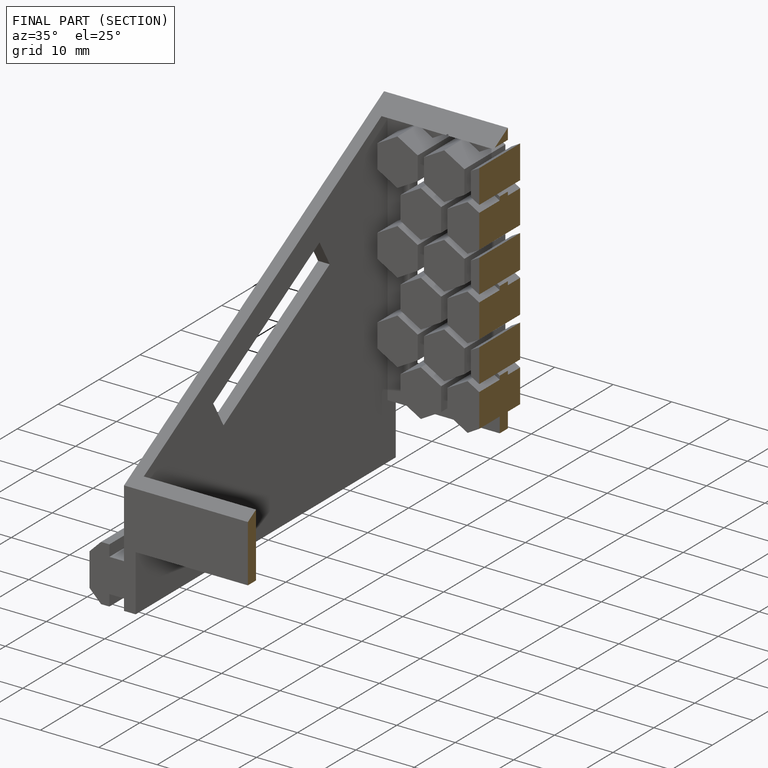
[diagram: finished part — half-section view (interior)]
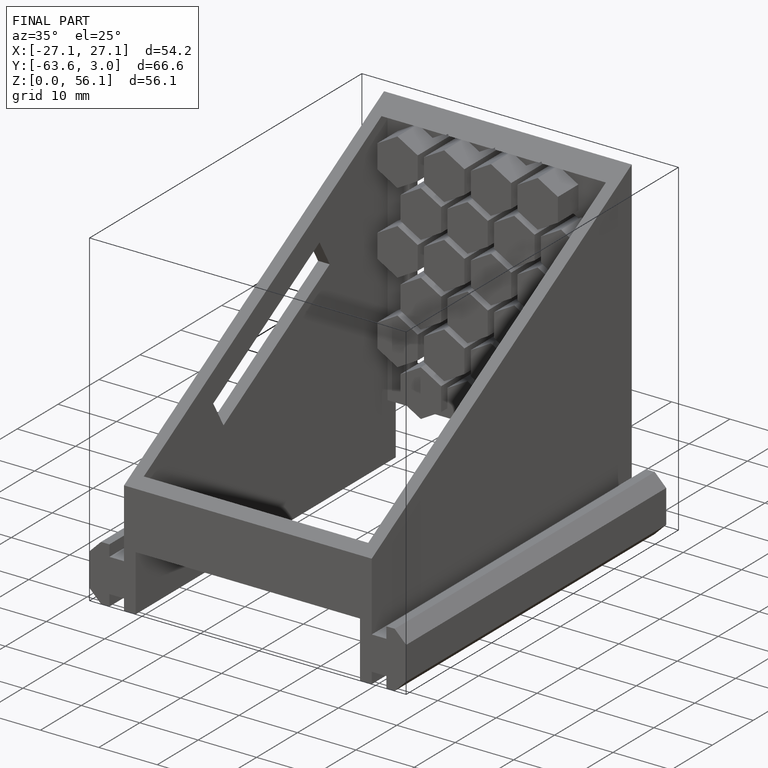
[diagram: finished part — iso view with bounding-box wireframe]
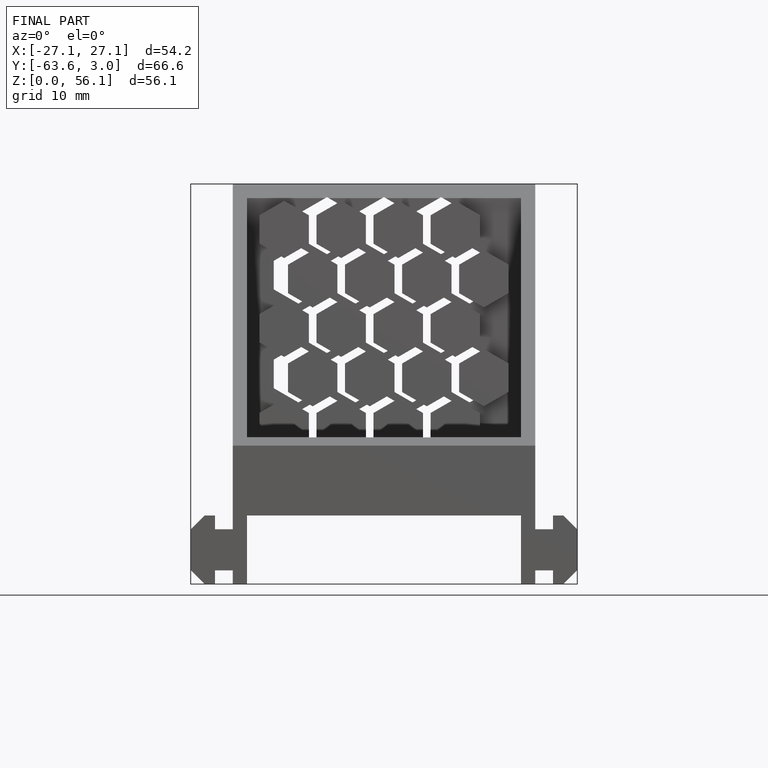
[diagram: finished part — front view with bounding-box wireframe]
